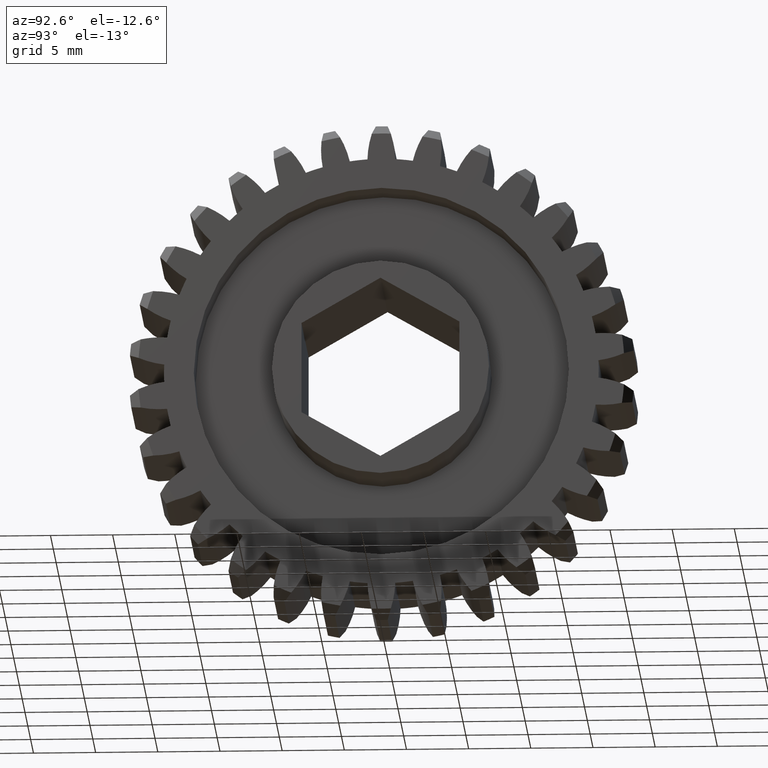
[diagram: clean part render]
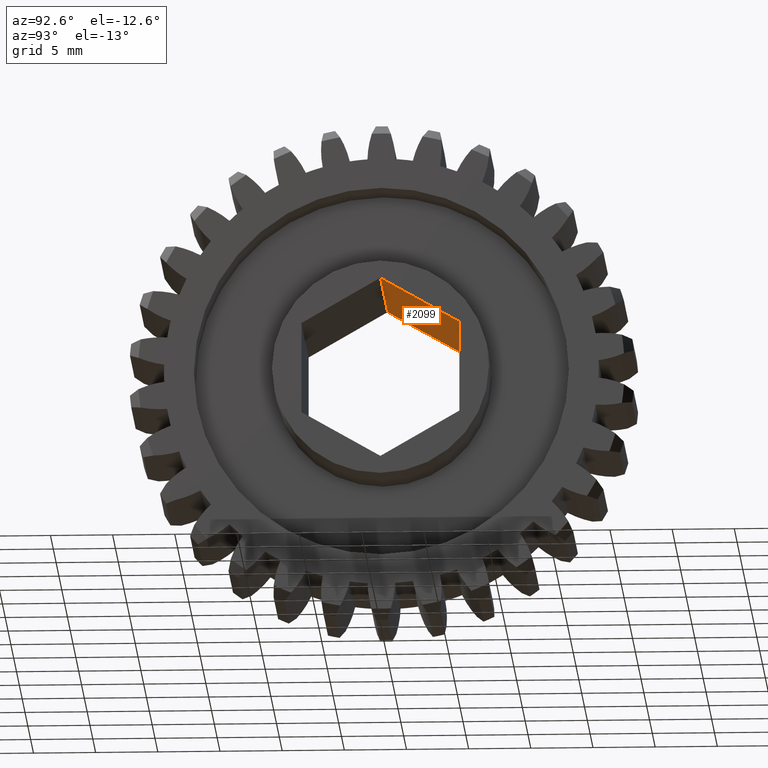
[diagram: same view with one face highlighted and labeled with its STEP entity id]
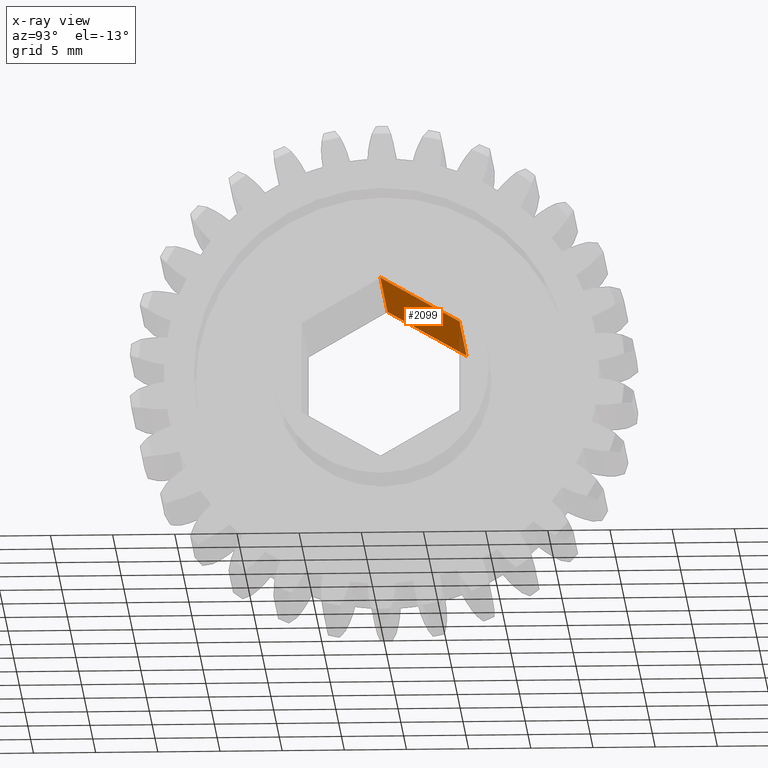
[diagram: x-ray of the same camera — body ghosted, the highlighted face saturated]
A machine part, auxiliary view. The second image highlights one B-rep face of the part: STEP entity #2099.
The next image is the same camera in x-ray: the body ghosted, the highlighted face saturated — about 3% of this face is hidden behind the body in this view.
In plain terms, the highlighted planar face has unit normal (0, 0.5, 0.866).
Its self-contained STEP definition (entity closure, byte-faithful):
#110 = DIRECTION ( 'NONE',  ( 1.000000000000000000, -0.0000000000000000000, -0.0000000000000000000 ) ) ;
#176 = CARTESIAN_POINT ( 'NONE',  ( -0.06250000000000001388, 3.238086068120623566E-17, 0.2886751345948129210 ) ) ;
#232 = VECTOR ( 'NONE', #2758, 39.37007874015748143 ) ;
#239 = DIRECTION ( 'NONE',  ( 0.0000000000000000000, -0.8660254037844385966, 0.5000000000000001110 ) ) ;
#552 = CARTESIAN_POINT ( 'NONE',  ( 0.4375000000000000555, 0.2500000000000000555, 0.1443375672974064050 ) ) ;
#570 = CARTESIAN_POINT ( 'NONE',  ( -0.06250000000000001388, 3.238086068120623566E-17, 0.2886751345948129210 ) ) ;
#775 = PLANE ( 'NONE',  #3907 ) ;
#1199 = VERTEX_POINT ( 'NONE', #6147 ) ;
#1209 = EDGE_CURVE ( 'NONE', #1199, #3819, #2850, .T. ) ;
#1214 = VERTEX_POINT ( 'NONE', #2325 ) ;
#1247 = VERTEX_POINT ( 'NONE', #176 ) ;
#1537 = EDGE_CURVE ( 'NONE', #1247, #1214, #5519, .T. ) ;
#2099 = ADVANCED_FACE ( 'NONE', ( #4075 ), #775, .F. ) ;
#2325 = CARTESIAN_POINT ( 'NONE',  ( 0.4375000000000000555, 3.238086068120623566E-17, 0.2886751345948129210 ) ) ;
#2758 = DIRECTION ( 'NONE',  ( 0.0000000000000000000, -0.8660254037844385966, 0.5000000000000001110 ) ) ;
#2772 = DIRECTION ( 'NONE',  ( 1.000000000000000000, -0.0000000000000000000, -0.0000000000000000000 ) ) ;
#2850 = LINE ( 'NONE', #5063, #6823 ) ;
#2973 = CARTESIAN_POINT ( 'NONE',  ( -0.06250000000000001388, 0.2500000000000000555, 0.1443375672974064050 ) ) ;
#2984 = VECTOR ( 'NONE', #5951, 39.37007874015748143 ) ;
#3760 = CARTESIAN_POINT ( 'NONE',  ( -0.06250000000000001388, 0.2500000000000000555, 0.1443375672974064050 ) ) ;
#3819 = VERTEX_POINT ( 'NONE', #4132 ) ;
#3901 = VECTOR ( 'NONE', #2772, 39.37007874015748143 ) ;
#3907 = AXIS2_PLACEMENT_3D ( 'NONE', #2973, #5193, #239 ) ;
#4075 = FACE_OUTER_BOUND ( 'NONE', #6071, .T. ) ;
#4132 = CARTESIAN_POINT ( 'NONE',  ( 0.4375000000000000555, 0.2500000000000000555, 0.1443375672974064050 ) ) ;
#4194 = ORIENTED_EDGE ( 'NONE', *, *, #4341, .F. ) ;
#4341 = EDGE_CURVE ( 'NONE', #1199, #1247, #7050, .T. ) ;
#5063 = CARTESIAN_POINT ( 'NONE',  ( -0.06250000000000001388, 0.2500000000000000555, 0.1443375672974064050 ) ) ;
#5131 = EDGE_CURVE ( 'NONE', #3819, #1214, #5495, .T. ) ;
#5193 = DIRECTION ( 'NONE',  ( 0.0000000000000000000, 0.5000000000000001110, 0.8660254037844385966 ) ) ;
#5495 = LINE ( 'NONE', #552, #232 ) ;
#5519 = LINE ( 'NONE', #570, #3901 ) ;
#5685 = ORIENTED_EDGE ( 'NONE', *, *, #5131, .T. ) ;
#5951 = DIRECTION ( 'NONE',  ( 0.0000000000000000000, -0.8660254037844385966, 0.5000000000000001110 ) ) ;
#6071 = EDGE_LOOP ( 'NONE', ( #5685, #6167, #4194, #6689 ) ) ;
#6147 = CARTESIAN_POINT ( 'NONE',  ( -0.06250000000000001388, 0.2500000000000000555, 0.1443375672974064050 ) ) ;
#6167 = ORIENTED_EDGE ( 'NONE', *, *, #1537, .F. ) ;
#6689 = ORIENTED_EDGE ( 'NONE', *, *, #1209, .T. ) ;
#6823 = VECTOR ( 'NONE', #110, 39.37007874015748143 ) ;
#7050 = LINE ( 'NONE', #3760, #2984 ) ;